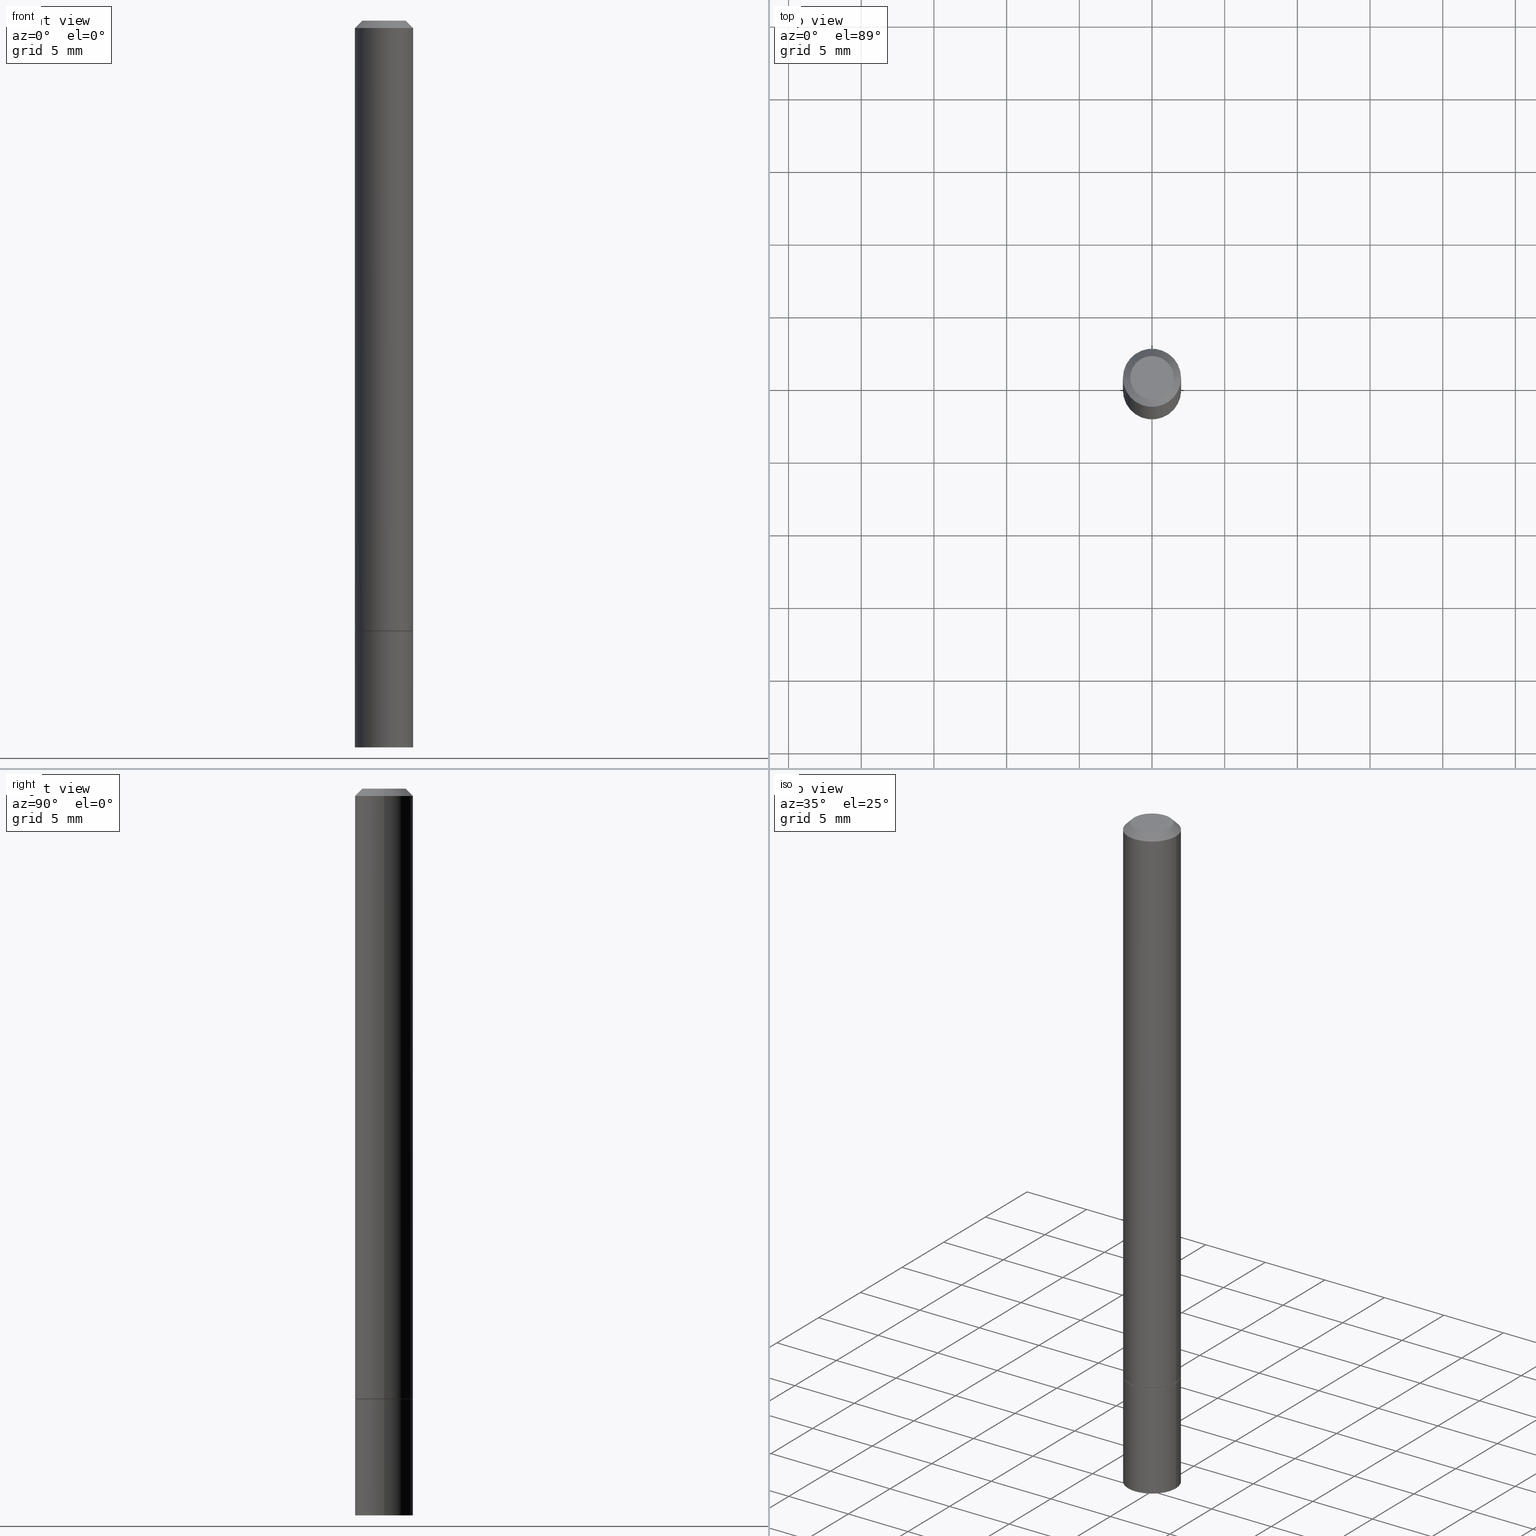
[diagram: canonical four-view strip — front | top / right | iso, engineering-drawing reading convention]
A machine part, canonical four-view strip (front | top / right | iso — engineering-drawing reading convention). The complete STEP part file that produces these views, byte-faithful:
ISO-10303-21;
HEADER;
FILE_DESCRIPTION (( 'STEP AP203' ),
    '1' );
FILE_NAME ('49268.STEP',
    '2024-02-28T17:05:55',
    ( '' ),
    ( '' ),
    'SwSTEP 2.0',
    'SolidWorks 2023',
    '' );
FILE_SCHEMA (( 'CONFIG_CONTROL_DESIGN' ));
ENDSEC;

DATA;
#1 = ORIENTED_EDGE ( 'NONE', *, *, #291, .T. ) ;
#2 = ORIENTED_EDGE ( 'NONE', *, *, #113, .F. ) ;
#3 = COORDINATED_UNIVERSAL_TIME_OFFSET ( 5, 0, .BEHIND. ) ;
#4 = PERSON_AND_ORGANIZATION_ROLE ( 'classification_officer' ) ;
#5 = PRODUCT ( '49268', '49268', '', ( #244 ) ) ;
#6 = DIRECTION ( 'NONE',  ( 1.000000000000000000, -6.982962677686266711E-15, 4.876176775795935793E-29 ) ) ;
#7 = UNCERTAINTY_MEASURE_WITH_UNIT (LENGTH_MEASURE( 1.000000000000000082E-05 ), #42, 'distance_accuracy_value', 'NONE');
#8 = VERTEX_POINT ( 'NONE', #246 ) ;
#9 = COORDINATED_UNIVERSAL_TIME_OFFSET ( 5, 0, .BEHIND. ) ;
#10 = DIRECTION ( 'NONE',  ( -2.445468806185136877E-29, 3.491481338843145188E-15, 1.000000000000000000 ) ) ;
#11 = FACE_OUTER_BOUND ( 'NONE', #175, .T. ) ;
#12 = ADVANCED_FACE ( 'NONE', ( #352 ), #354, .F. ) ;
#13 = EDGE_LOOP ( 'NONE', ( #41, #205, #241, #60 ) ) ;
#14 = CARTESIAN_POINT ( 'NONE',  ( 0.000000000000000000, 0.000000000000000000, 0.000000000000000000 ) ) ;
#15 = CIRCLE ( 'NONE', #145, 0.07875000000000000056 ) ;
#16 = EDGE_LOOP ( 'NONE', ( #261, #186, #256, #289 ) ) ;
#17 = CARTESIAN_POINT ( 'NONE',  ( 4.890937612370276662E-31, -6.982962677686296539E-17, -0.02000000000000001776 ) ) ;
#18 = DIRECTION ( 'NONE',  ( -2.445468806185136597E-29, 3.491481338843145583E-15, 1.000000000000000000 ) ) ;
#19 = EDGE_CURVE ( 'NONE', #267, #217, #162, .T. ) ;
#20 = CIRCLE ( 'NONE', #346, 0.05874999999999985095 ) ;
#21 = DIRECTION ( 'NONE',  ( -2.445468806185136597E-29, 3.491481338843145583E-15, 1.000000000000000000 ) ) ;
#22 = MANIFOLD_SOLID_BREP ( 'Body-Move/Copy2[2]', #313 ) ;
#23 = DIRECTION ( 'NONE',  ( -1.000000000000000000, 6.982962677686265922E-15, -4.876176775795935793E-29 ) ) ;
#24 = COORDINATED_UNIVERSAL_TIME_OFFSET ( 5, 0, .BEHIND. ) ;
#25 = PRODUCT_RELATED_PRODUCT_CATEGORY ( 'detail', '', ( #5 ) ) ;
#26 = DIRECTION ( 'NONE',  ( -2.445468806185136597E-29, 3.491481338843145583E-15, 1.000000000000000000 ) ) ;
#27 = DIRECTION ( 'NONE',  ( -2.445468806185136877E-29, 3.491481338843145188E-15, 1.000000000000000000 ) ) ;
#28 = CARTESIAN_POINT ( 'NONE',  ( 4.043582671027122641E-29, -5.773164393777140283E-15, -1.653499999999999748 ) ) ;
#29 = CIRCLE ( 'NONE', #318, 0.07875000000000000056 ) ;
#30 = VECTOR ( 'NONE', #224, 39.37007874015748143 ) ;
#31 = CARTESIAN_POINT ( 'NONE',  ( 0.07875000000000000056, -7.422889326380525053E-15, -1.968500000000000139 ) ) ;
#32 = ADVANCED_BREP_SHAPE_REPRESENTATION ( '49268', ( #268, #22, #247 ), #190 ) ;
#33 = ADVANCED_FACE ( 'NONE', ( #276 ), #232, .T. ) ;
#34 = ORIENTED_EDGE ( 'NONE', *, *, #59, .T. ) ;
#35 = VECTOR ( 'NONE', #284, 39.37007874015748143 ) ;
#36 = CIRCLE ( 'NONE', #81, 0.05874999999999985095 ) ;
#37 = EDGE_LOOP ( 'NONE', ( #150, #130, #1, #43 ) ) ;
#38 = EDGE_CURVE ( 'NONE', #267, #147, #29, .T. ) ;
#39 = DIRECTION ( 'NONE',  ( 1.000000000000000000, -6.982962677686266711E-15, 4.876176775795935793E-29 ) ) ;
#40 = ADVANCED_FACE ( 'NONE', ( #64 ), #287, .T. ) ;
#41 = ORIENTED_EDGE ( 'NONE', *, *, #328, .F. ) ;
#42 =( CONVERSION_BASED_UNIT ( 'INCH', #90 ) LENGTH_UNIT ( ) NAMED_UNIT ( #164 ) );
#43 = ORIENTED_EDGE ( 'NONE', *, *, #59, .F. ) ;
#44 = COORDINATED_UNIVERSAL_TIME_OFFSET ( 5, 0, .BEHIND. ) ;
#45 = ORIENTED_EDGE ( 'NONE', *, *, #85, .T. ) ;
#46 = DIRECTION ( 'NONE',  ( 1.000000000000000000, -6.982962677686264344E-15, 0.000000000000000000 ) ) ;
#47 = VECTOR ( 'NONE', #61, 39.37007874015748143 ) ;
#48 = ORIENTED_EDGE ( 'NONE', *, *, #328, .T. ) ;
#49 = LINE ( 'NONE', #106, #238 ) ;
#50 = DIRECTION ( 'NONE',  ( 2.438088387897960049E-29, -3.491481338843145188E-15, -1.000000000000000000 ) ) ;
#51 = CC_DESIGN_APPROVAL ( #348, ( #227 ) ) ;
#52 = ADVANCED_FACE ( 'NONE', ( #277 ), #235, .F. ) ;
#53 = LINE ( 'NONE', #221, #361 ) ;
#54 = APPROVAL_STATUS ( 'not_yet_approved' ) ;
#55 = CARTESIAN_POINT ( 'NONE',  ( 0.07874999999999997280, -6.319581223306091410E-15, -1.652499999999999858 ) ) ;
#56 = CARTESIAN_POINT ( 'NONE',  ( -0.07874999999999988953, 5.595524044110781115E-16, -3.873661383575732887E-30 ) ) ;
#57 = CIRCLE ( 'NONE', #89, 0.07774999999999999967 ) ;
#58 = CC_DESIGN_PERSON_AND_ORGANIZATION_ASSIGNMENT ( #206, #317, ( #273 ) ) ;
#59 = EDGE_CURVE ( 'NONE', #160, #8, #263, .T. ) ;
#60 = ORIENTED_EDGE ( 'NONE', *, *, #360, .F. ) ;
#61 = DIRECTION ( 'NONE',  ( -0.7071067811865464625, 2.468850131082245622E-15, -0.7071067811865485719 ) ) ;
#62 = PERSON_AND_ORGANIZATION ( #229, #116 ) ;
#63 = PERSON_AND_ORGANIZATION_ROLE ( 'design_owner' ) ;
#64 = FACE_OUTER_BOUND ( 'NONE', #16, .T. ) ;
#65 = AXIS2_PLACEMENT_3D ( 'NONE', #255, #288, #173 ) ;
#66 = PRODUCT_DEFINITION_SHAPE ( 'NONE', 'NONE',  #227 ) ;
#67 = SECURITY_CLASSIFICATION ( '', '', #233 ) ;
#68 = CYLINDRICAL_SURFACE ( 'NONE', #211, 0.07874999999999988953 ) ;
#69 = VERTEX_POINT ( 'NONE', #55 ) ;
#70 = APPLICATION_PROTOCOL_DEFINITION ( 'international standard', 'config_control_design', 1994, #243 ) ;
#71 = ORIENTED_EDGE ( 'NONE', *, *, #110, .T. ) ;
#72 = VERTEX_POINT ( 'NONE', #252 ) ;
#73 = CARTESIAN_POINT ( 'NONE',  ( 4.043582671027122641E-29, -5.773164393777140283E-15, -1.653499999999999748 ) ) ;
#74 = CIRCLE ( 'NONE', #265, 0.07874999999999997280 ) ;
#75 = DIRECTION ( 'NONE',  ( -1.000000000000000000, 6.982962677686266711E-15, 0.000000000000000000 ) ) ;
#76 = PERSON_AND_ORGANIZATION ( #229, #116 ) ;
#77 = CARTESIAN_POINT ( 'NONE',  ( -0.07874999999999980627, 4.800786840909291600E-16, -0.02000000000000001776 ) ) ;
#78 = CARTESIAN_POINT ( 'NONE',  ( 4.813905344975441835E-29, -6.872981015512731707E-15, -1.968500000000000139 ) ) ;
#79 = ADVANCED_FACE ( 'NONE', ( #251 ), #358, .T. ) ;
#80 = DIRECTION ( 'NONE',  ( 1.000000000000000000, -6.982962677686265922E-15, 4.876176775795935232E-29 ) ) ;
#81 = AXIS2_PLACEMENT_3D ( 'NONE', #126, #274, #120 ) ;
#82 = FACE_OUTER_BOUND ( 'NONE', #214, .T. ) ;
#83 = DIRECTION ( 'NONE',  ( -2.445468806185136597E-29, 3.491481338843145583E-15, 1.000000000000000000 ) ) ;
#84 = APPROVAL_STATUS ( 'not_yet_approved' ) ;
#85 = EDGE_CURVE ( 'NONE', #320, #188, #20, .T. ) ;
#86 = LOCAL_TIME ( 12, 5, 55.00000000000000000, #3 ) ;
#87 = CC_DESIGN_PERSON_AND_ORGANIZATION_ASSIGNMENT ( #95, #262, ( #273 ) ) ;
#88 = ORIENTED_EDGE ( 'NONE', *, *, #144, .T. ) ;
#89 = AXIS2_PLACEMENT_3D ( 'NONE', #197, #249, #139 ) ;
#90 = LENGTH_MEASURE_WITH_UNIT ( LENGTH_MEASURE( 0.02539999999999999897 ), #236 );
#91 = DATE_AND_TIME ( #99, #86 ) ;
#92 = DATE_AND_TIME ( #97, #228 ) ;
#93 = EDGE_CURVE ( 'NONE', #8, #160, #226, .T. ) ;
#94 = ORIENTED_EDGE ( 'NONE', *, *, #203, .T. ) ;
#95 = PERSON_AND_ORGANIZATION ( #229, #116 ) ;
#96 = AXIS2_PLACEMENT_3D ( 'NONE', #309, #108, #219 ) ;
#97 = CALENDAR_DATE ( 2024, 28, 2 ) ;
#98 = CARTESIAN_POINT ( 'NONE',  ( 5.499083108678337748E-16, 0.07874999999999422740, -1.653500000000000192 ) ) ;
#99 = CALENDAR_DATE ( 2024, 28, 2 ) ;
#100 = EDGE_LOOP ( 'NONE', ( #212, #322, #180, #185 ) ) ;
#101 = DIRECTION ( 'NONE',  ( 1.000000000000000000, -6.982962677686264344E-15, 0.000000000000000000 ) ) ;
#102 = EDGE_LOOP ( 'NONE', ( #292, #156 ) ) ;
#103 = CIRCLE ( 'NONE', #183, 0.07875000000000000056 ) ;
#104 = CARTESIAN_POINT ( 'NONE',  ( 4.043582671027123201E-29, -5.773164393777141072E-15, -1.653499999999999970 ) ) ;
#105 = ADVANCED_FACE ( 'NONE', ( #82 ), #357, .T. ) ;
#106 = CARTESIAN_POINT ( 'NONE',  ( -0.07774999999999999967, -5.220717416723661700E-15, -1.653499999999999748 ) ) ;
#107 = CARTESIAN_POINT ( 'NONE',  ( 0.000000000000000000, 0.000000000000000000, 0.000000000000000000 ) ) ;
#108 = DIRECTION ( 'NONE',  ( 2.445468806185136597E-29, -3.491481338843145583E-15, -1.000000000000000000 ) ) ;
#109 = CARTESIAN_POINT ( 'NONE',  ( 0.07874999999999980627, -6.100938441013697087E-16, -0.02000000000000001776 ) ) ;
#110 = EDGE_CURVE ( 'NONE', #344, #217, #210, .T. ) ;
#111 = DATE_TIME_ROLE ( 'creation_date' ) ;
#112 = APPROVAL_PERSON_ORGANIZATION ( #76, #245, #280 ) ;
#113 = EDGE_CURVE ( 'NONE', #128, #69, #359, .T. ) ;
#114 = EDGE_LOOP ( 'NONE', ( #94, #153, #312, #340 ) ) ;
#115 = VERTEX_POINT ( 'NONE', #327 ) ;
#116 = ORGANIZATION ( 'UNSPECIFIED', 'UNSPECIFIED', '' ) ;
#117 = CARTESIAN_POINT ( 'NONE',  ( 0.000000000000000000, 0.000000000000000000, 0.000000000000000000 ) ) ;
#118 = APPROVAL_DATE_TIME ( #91, #159 ) ;
#119 = CC_DESIGN_DATE_AND_TIME_ASSIGNMENT ( #363, #111, ( #227 ) ) ;
#120 = DIRECTION ( 'NONE',  ( 1.000000000000000000, -6.982962677686266711E-15, 4.876176775795935793E-29 ) ) ;
#121 = DIRECTION ( 'NONE',  ( 1.000000000000000000, -6.982962677686261977E-15, 0.000000000000000000 ) ) ;
#122 = CARTESIAN_POINT ( 'NONE',  ( 4.043582671027123201E-29, -5.773164393777141072E-15, -1.653499999999999970 ) ) ;
#123 = CARTESIAN_POINT ( 'NONE',  ( -0.07875000000000000056, 5.595524044110789003E-16, -3.873661383575737792E-30 ) ) ;
#124 = AXIS2_PLACEMENT_3D ( 'NONE', #17, #129, #75 ) ;
#125 = APPROVAL_PERSON_ORGANIZATION ( #271, #348, #299 ) ;
#126 = CARTESIAN_POINT ( 'NONE',  ( 0.000000000000000000, 0.000000000000000000, 0.000000000000000000 ) ) ;
#127 = EDGE_CURVE ( 'NONE', #115, #72, #49, .T. ) ;
#128 = VERTEX_POINT ( 'NONE', #220 ) ;
#129 = DIRECTION ( 'NONE',  ( 2.445468806185136597E-29, -3.491481338843145583E-15, -1.000000000000000000 ) ) ;
#130 = ORIENTED_EDGE ( 'NONE', *, *, #334, .T. ) ;
#131 = AXIS2_PLACEMENT_3D ( 'NONE', #234, #240, #101 ) ;
#132 = DIRECTION ( 'NONE',  ( -0.7071067811866138531, 7.493145998870593974E-15, 0.7071067811864811814 ) ) ;
#133 = COORDINATED_UNIVERSAL_TIME_OFFSET ( 5, 0, .BEHIND. ) ;
#134 = PERSON_AND_ORGANIZATION_ROLE ( 'creator' ) ;
#135 = ADVANCED_FACE ( 'NONE', ( #193 ), #304, .F. ) ;
#136 = CARTESIAN_POINT ( 'NONE',  ( -0.07875000000000000056, -5.763520300233858771E-15, -1.653499999999999970 ) ) ;
#137 = APPROVAL_DATE_TIME ( #305, #245 ) ;
#138 = LINE ( 'NONE', #109, #30 ) ;
#139 = DIRECTION ( 'NONE',  ( 1.000000000000000000, -6.982962677686261977E-15, 0.000000000000000000 ) ) ;
#140 = DIRECTION ( 'NONE',  ( 1.000000000000000000, -6.982962677686261977E-15, 0.000000000000000000 ) ) ;
#141 = DIRECTION ( 'NONE',  ( 1.000000000000000000, -6.982962677686261977E-15, 0.000000000000000000 ) ) ;
#142 = APPROVAL_ROLE ( '' ) ;
#143 = SHAPE_DEFINITION_REPRESENTATION ( #66, #32 ) ;
#144 = EDGE_CURVE ( 'NONE', #72, #160, #192, .T. ) ;
#145 = AXIS2_PLACEMENT_3D ( 'NONE', #78, #278, #141 ) ;
#146 = ORIENTED_EDGE ( 'NONE', *, *, #356, .T. ) ;
#147 = VERTEX_POINT ( 'NONE', #31 ) ;
#148 = PERSON_AND_ORGANIZATION ( #229, #116 ) ;
#149 = DIRECTION ( 'NONE',  ( -2.445468806185136597E-29, 3.491481338843145583E-15, 1.000000000000000000 ) ) ;
#150 = ORIENTED_EDGE ( 'NONE', *, *, #144, .F. ) ;
#151 = AXIS2_PLACEMENT_3D ( 'NONE', #333, #223, #198 ) ;
#152 = PERSON_AND_ORGANIZATION ( #229, #116 ) ;
#153 = ORIENTED_EDGE ( 'NONE', *, *, #19, .T. ) ;
#154 = ORIENTED_EDGE ( 'NONE', *, *, #85, .F. ) ;
#155 = CARTESIAN_POINT ( 'NONE',  ( 4.041137202220937598E-29, -5.769672912438298064E-15, -1.652499999999999858 ) ) ;
#156 = ORIENTED_EDGE ( 'NONE', *, *, #295, .F. ) ;
#157 = CALENDAR_DATE ( 2024, 28, 2 ) ;
#158 = DIRECTION ( 'NONE',  ( 0.000000000000000000, 0.000000000000000000, 1.000000000000000000 ) ) ;
#159 = APPROVAL ( #84, 'UNSPECIFIED' ) ;
#160 = VERTEX_POINT ( 'NONE', #77 ) ;
#161 = VECTOR ( 'NONE', #248, 39.37007874015748143 ) ;
#162 = LINE ( 'NONE', #123, #301 ) ;
#163 = CARTESIAN_POINT ( 'NONE',  ( 4.890937612370276662E-31, -6.982962677686296539E-17, -0.02000000000000001776 ) ) ;
#164 = DIMENSIONAL_EXPONENTS ( 1.000000000000000000, 0.000000000000000000, 0.000000000000000000, 0.000000000000000000, 0.000000000000000000, 0.000000000000000000, 0.000000000000000000 ) ;
#165 = DIRECTION ( 'NONE',  ( -1.000000000000000000, 6.982962677686265922E-15, -4.876176775795935793E-29 ) ) ;
#166 = CLOSED_SHELL ( 'NONE', ( #79, #105, #52, #200 ) ) ;
#167 = VECTOR ( 'NONE', #27, 39.37007874015748143 ) ;
#168 = FACE_OUTER_BOUND ( 'NONE', #316, .T. ) ;
#169 = APPLICATION_CONTEXT ( 'configuration controlled 3d designs of mechanical parts and assemblies' ) ;
#170 = DIRECTION ( 'NONE',  ( -2.445468806185136877E-29, 3.491481338843145188E-15, 1.000000000000000000 ) ) ;
#171 = CC_DESIGN_PERSON_AND_ORGANIZATION_ASSIGNMENT ( #62, #4, ( #67 ) ) ;
#172 = CARTESIAN_POINT ( 'NONE',  ( 5.499083108678415648E-16, 0.07874999999999311717, -1.968500000000000361 ) ) ;
#173 = DIRECTION ( 'NONE',  ( 1.000000000000000000, -6.982962677686266711E-15, 0.000000000000000000 ) ) ;
#174 = CC_DESIGN_APPROVAL ( #245, ( #67 ) ) ;
#175 = EDGE_LOOP ( 'NONE', ( #298, #88, #290, #272 ) ) ;
#176 = ADVANCED_FACE ( 'NONE', ( #196 ), #239, .T. ) ;
#177 = LOCAL_TIME ( 12, 5, 55.00000000000000000, #133 ) ;
#178 = EDGE_LOOP ( 'NONE', ( #71, #146 ) ) ;
#179 = ORIENTED_EDGE ( 'NONE', *, *, #342, .F. ) ;
#180 = ORIENTED_EDGE ( 'NONE', *, *, #222, .T. ) ;
#181 = CARTESIAN_POINT ( 'NONE',  ( -0.05874999999999985095, 4.451638707024981026E-16, -2.990994270918719090E-30 ) ) ;
#182 = DIRECTION ( 'NONE',  ( -1.000000000000000000, 6.982962677686265922E-15, -4.876176775795935793E-29 ) ) ;
#183 = AXIS2_PLACEMENT_3D ( 'NONE', #122, #351, #296 ) ;
#184 = CARTESIAN_POINT ( 'NONE',  ( 0.07875000000000000056, -6.323072704644934417E-15, -1.653499999999999970 ) ) ;
#185 = ORIENTED_EDGE ( 'NONE', *, *, #356, .F. ) ;
#186 = ORIENTED_EDGE ( 'NONE', *, *, #295, .T. ) ;
#187 = LINE ( 'NONE', #343, #47 ) ;
#188 = VERTEX_POINT ( 'NONE', #195 ) ;
#189 = DATE_AND_TIME ( #157, #347 ) ;
#190 =( GEOMETRIC_REPRESENTATION_CONTEXT ( 3 ) GLOBAL_UNCERTAINTY_ASSIGNED_CONTEXT ( ( #7 ) ) GLOBAL_UNIT_ASSIGNED_CONTEXT ( ( #42, #323, #207 ) ) REPRESENTATION_CONTEXT ( 'NONE', 'WORKASPACE' ) );
#191 = CARTESIAN_POINT ( 'NONE',  ( 4.813905344975441835E-29, -6.872981015512731707E-15, -1.968500000000000139 ) ) ;
#192 = LINE ( 'NONE', #56, #161 ) ;
#193 = FACE_OUTER_BOUND ( 'NONE', #230, .T. ) ;
#194 = AXIS2_PLACEMENT_3D ( 'NONE', #104, #83, #330 ) ;
#195 = CARTESIAN_POINT ( 'NONE',  ( 0.05874999999999985095, -5.065740507352231227E-16, 3.205406768517976639E-30 ) ) ;
#196 = FACE_OUTER_BOUND ( 'NONE', #350, .T. ) ;
#197 = CARTESIAN_POINT ( 'NONE',  ( 4.043582671027122641E-29, -5.773164393777140283E-15, -1.653499999999999748 ) ) ;
#198 = DIRECTION ( 'NONE',  ( 1.000000000000000000, -6.982962677686265922E-15, 4.876176775795935232E-29 ) ) ;
#199 = LOCAL_TIME ( 12, 5, 55.00000000000000000, #24 ) ;
#200 = ADVANCED_FACE ( 'NONE', ( #254 ), #285, .T. ) ;
#201 = AXIS2_PLACEMENT_3D ( 'NONE', #303, #26, #80 ) ;
#202 = ORIENTED_EDGE ( 'NONE', *, *, #203, .F. ) ;
#203 = EDGE_CURVE ( 'NONE', #147, #267, #15, .T. ) ;
#204 = APPLICATION_PROTOCOL_DEFINITION ( 'international standard', 'config_control_design', 1994, #169 ) ;
#205 = ORIENTED_EDGE ( 'NONE', *, *, #250, .T. ) ;
#206 = PERSON_AND_ORGANIZATION ( #229, #116 ) ;
#207 =( NAMED_UNIT ( * ) SI_UNIT ( $, .STERADIAN. ) SOLID_ANGLE_UNIT ( ) );
#208 = ADVANCED_FACE ( 'NONE', ( #168 ), #341, .T. ) ;
#209 = DIRECTION ( 'NONE',  ( 1.000000000000000000, -6.982962677686265922E-15, 4.876176775795935793E-29 ) ) ;
#210 = CIRCLE ( 'NONE', #194, 0.07875000000000000056 ) ;
#211 = AXIS2_PLACEMENT_3D ( 'NONE', #117, #266, #39 ) ;
#212 = ORIENTED_EDGE ( 'NONE', *, *, #19, .F. ) ;
#213 = APPROVAL_DATE_TIME ( #92, #348 ) ;
#214 = EDGE_LOOP ( 'NONE', ( #202, #314 ) ) ;
#215 = DIRECTION ( 'NONE',  ( -2.445468806185136597E-29, 3.491481338843145583E-15, 1.000000000000000000 ) ) ;
#216 = ORIENTED_EDGE ( 'NONE', *, *, #127, .T. ) ;
#217 = VERTEX_POINT ( 'NONE', #136 ) ;
#218 = AXIS2_PLACEMENT_3D ( 'NONE', #14, #215, #6 ) ;
#219 = DIRECTION ( 'NONE',  ( -1.000000000000000000, 6.982962677686266711E-15, 0.000000000000000000 ) ) ;
#220 = CARTESIAN_POINT ( 'NONE',  ( 0.07774999999999999967, -6.316089741967246825E-15, -1.653499999999999748 ) ) ;
#221 = CARTESIAN_POINT ( 'NONE',  ( 0.07875000000000000056, -5.499083108677934443E-16, 3.839989210939299016E-30 ) ) ;
#222 = EDGE_CURVE ( 'NONE', #147, #344, #53, .T. ) ;
#223 = DIRECTION ( 'NONE',  ( -2.445468806185136597E-29, 3.491481338843145583E-15, 1.000000000000000000 ) ) ;
#224 = DIRECTION ( 'NONE',  ( 0.7071067811865464625, -7.319954787623252890E-15, -0.7071067811865485719 ) ) ;
#225 = LINE ( 'NONE', #308, #167 ) ;
#226 = CIRCLE ( 'NONE', #65, 0.07874999999999980627 ) ;
#227 = PRODUCT_DEFINITION ( 'UNKNOWN', '', #273, #311 ) ;
#228 = LOCAL_TIME ( 12, 5, 55.00000000000000000, #9 ) ;
#229 = PERSON ( 'UNSPECIFIED', 'UNSPECIFIED', 'UNSPECIFIED', ('UNSPECIFIED'), ('UNSPECIFIED'), ('UNSPECIFIED') ) ;
#230 = EDGE_LOOP ( 'NONE', ( #45, #48 ) ) ;
#231 = CC_DESIGN_PERSON_AND_ORGANIZATION_ASSIGNMENT ( #148, #63, ( #5 ) ) ;
#232 = CONICAL_SURFACE ( 'NONE', #124, 0.07874999999999980627, 0.7853981633974468357 ) ;
#233 = SECURITY_CLASSIFICATION_LEVEL ( 'unclassified' ) ;
#234 = CARTESIAN_POINT ( 'NONE',  ( 4.041137202220937598E-29, -5.769672912438298064E-15, -1.652499999999999858 ) ) ;
#235 = PLANE ( 'NONE',  #336 ) ;
#236 =( LENGTH_UNIT ( ) NAMED_UNIT ( * ) SI_UNIT ( $, .METRE. ) );
#237 = DIRECTION ( 'NONE',  ( 1.000000000000000000, -6.982962677686261977E-15, 0.000000000000000000 ) ) ;
#238 = VECTOR ( 'NONE', #132, 39.37007874015748143 ) ;
#239 = CONICAL_SURFACE ( 'NONE', #96, 0.07874999999999980627, 0.7853981633974468357 ) ;
#240 = DIRECTION ( 'NONE',  ( -2.445468806185136597E-29, 3.491481338843145583E-15, 1.000000000000000000 ) ) ;
#241 = ORIENTED_EDGE ( 'NONE', *, *, #93, .T. ) ;
#242 = CALENDAR_DATE ( 2024, 28, 2 ) ;
#243 = APPLICATION_CONTEXT ( 'configuration controlled 3d designs of mechanical parts and assemblies' ) ;
#244 = MECHANICAL_CONTEXT ( 'NONE', #169, 'mechanical' ) ;
#245 = APPROVAL ( #54, 'UNSPECIFIED' ) ;
#246 = CARTESIAN_POINT ( 'NONE',  ( 0.07874999999999980627, -6.100938441013697087E-16, -0.02000000000000001776 ) ) ;
#247 = AXIS2_PLACEMENT_3D ( 'NONE', #345, #158, #321 ) ;
#248 = DIRECTION ( 'NONE',  ( -2.445468806185136877E-29, 3.491481338843145188E-15, 1.000000000000000000 ) ) ;
#249 = DIRECTION ( 'NONE',  ( -2.445468806185136597E-29, 3.491481338843145583E-15, 1.000000000000000000 ) ) ;
#250 = EDGE_CURVE ( 'NONE', #188, #8, #138, .T. ) ;
#251 = FACE_OUTER_BOUND ( 'NONE', #114, .T. ) ;
#252 = CARTESIAN_POINT ( 'NONE',  ( -0.07874999999999997280, -2.360198865196498330E-15, -1.652499999999999858 ) ) ;
#253 = FACE_OUTER_BOUND ( 'NONE', #37, .T. ) ;
#254 = FACE_OUTER_BOUND ( 'NONE', #100, .T. ) ;
#255 = CARTESIAN_POINT ( 'NONE',  ( 4.890937612370276662E-31, -6.982962677686296539E-17, -0.02000000000000001776 ) ) ;
#256 = ORIENTED_EDGE ( 'NONE', *, *, #113, .T. ) ;
#257 = PERSON_AND_ORGANIZATION ( #229, #116 ) ;
#258 = ORIENTED_EDGE ( 'NONE', *, *, #282, .T. ) ;
#259 = CYLINDRICAL_SURFACE ( 'NONE', #218, 0.07874999999999988953 ) ;
#260 = CARTESIAN_POINT ( 'NONE',  ( -0.07875000000000000056, -5.763520300233858771E-15, -1.968500000000000139 ) ) ;
#261 = ORIENTED_EDGE ( 'NONE', *, *, #127, .F. ) ;
#262 = PERSON_AND_ORGANIZATION_ROLE ( 'design_supplier' ) ;
#263 = CIRCLE ( 'NONE', #325, 0.07874999999999980627 ) ;
#264 = AXIS2_PLACEMENT_3D ( 'NONE', #73, #353, #209 ) ;
#265 = AXIS2_PLACEMENT_3D ( 'NONE', #155, #315, #46 ) ;
#266 = DIRECTION ( 'NONE',  ( -2.445468806185136597E-29, 3.491481338843145583E-15, 1.000000000000000000 ) ) ;
#267 = VERTEX_POINT ( 'NONE', #260 ) ;
#268 = MANIFOLD_SOLID_BREP ( 'Body-Move/Copy2[1]', #166 ) ;
#269 = CC_DESIGN_PERSON_AND_ORGANIZATION_ASSIGNMENT ( #152, #134, ( #227 ) ) ;
#270 = CARTESIAN_POINT ( 'NONE',  ( 4.043582671027122641E-29, -5.773164393777140283E-15, -1.653499999999999748 ) ) ;
#271 = PERSON_AND_ORGANIZATION ( #229, #116 ) ;
#272 = ORIENTED_EDGE ( 'NONE', *, *, #291, .F. ) ;
#273 = PRODUCT_DEFINITION_FORMATION_WITH_SPECIFIED_SOURCE ( 'ANY', '', #5, .NOT_KNOWN. ) ;
#274 = DIRECTION ( 'NONE',  ( -2.445468806185136597E-29, 3.491481338843145583E-15, 1.000000000000000000 ) ) ;
#275 = CC_DESIGN_DATE_AND_TIME_ASSIGNMENT ( #189, #355, ( #67 ) ) ;
#276 = FACE_OUTER_BOUND ( 'NONE', #13, .T. ) ;
#277 = FACE_OUTER_BOUND ( 'NONE', #178, .T. ) ;
#278 = DIRECTION ( 'NONE',  ( -2.445468806185136597E-29, 3.491481338843145583E-15, 1.000000000000000000 ) ) ;
#279 = AXIS2_PLACEMENT_3D ( 'NONE', #270, #349, #237 ) ;
#280 = APPROVAL_ROLE ( '' ) ;
#281 = CIRCLE ( 'NONE', #366, 0.07774999999999999967 ) ;
#282 = EDGE_CURVE ( 'NONE', #128, #115, #281, .T. ) ;
#283 = DIRECTION ( 'NONE',  ( 1.000000000000000000, -6.982962677686266711E-15, 0.000000000000000000 ) ) ;
#284 = DIRECTION ( 'NONE',  ( 0.7071067811866138531, -2.468850131082952047E-15, 0.7071067811864811814 ) ) ;
#285 = CYLINDRICAL_SURFACE ( 'NONE', #201, 0.07875000000000000056 ) ;
#286 = CALENDAR_DATE ( 2024, 28, 2 ) ;
#287 = CONICAL_SURFACE ( 'NONE', #279, 0.07774999999999999967, 0.7853981633975420928 ) ;
#288 = DIRECTION ( 'NONE',  ( -2.445468806185136597E-29, 3.491481338843145583E-15, 1.000000000000000000 ) ) ;
#289 = ORIENTED_EDGE ( 'NONE', *, *, #334, .F. ) ;
#290 = ORIENTED_EDGE ( 'NONE', *, *, #93, .F. ) ;
#291 = EDGE_CURVE ( 'NONE', #69, #8, #225, .T. ) ;
#292 = ORIENTED_EDGE ( 'NONE', *, *, #282, .F. ) ;
#293 = APPROVAL_STATUS ( 'not_yet_approved' ) ;
#294 = CIRCLE ( 'NONE', #131, 0.07874999999999997280 ) ;
#295 = EDGE_CURVE ( 'NONE', #115, #128, #57, .T. ) ;
#296 = DIRECTION ( 'NONE',  ( 1.000000000000000000, -6.982962677686261977E-15, 0.000000000000000000 ) ) ;
#297 = DIRECTION ( 'NONE',  ( -2.445468806185136597E-29, 3.491481338843145583E-15, 1.000000000000000000 ) ) ;
#298 = ORIENTED_EDGE ( 'NONE', *, *, #342, .T. ) ;
#299 = APPROVAL_ROLE ( '' ) ;
#300 = ADVANCED_FACE ( 'NONE', ( #253 ), #259, .T. ) ;
#301 = VECTOR ( 'NONE', #10, 39.37007874015748143 ) ;
#302 = DIRECTION ( 'NONE',  ( 2.438088387897960049E-29, -3.491481338843145188E-15, -1.000000000000000000 ) ) ;
#303 = CARTESIAN_POINT ( 'NONE',  ( 0.000000000000000000, 0.000000000000000000, 0.000000000000000000 ) ) ;
#304 = PLANE ( 'NONE',  #331 ) ;
#305 = DATE_AND_TIME ( #242, #177 ) ;
#306 = APPROVAL_PERSON_ORGANIZATION ( #257, #159, #142 ) ;
#307 = DIRECTION ( 'NONE',  ( -2.445468806185136597E-29, 3.491481338843145583E-15, 1.000000000000000000 ) ) ;
#308 = CARTESIAN_POINT ( 'NONE',  ( 0.07874999999999988953, -5.499083108677927540E-16, 3.839989210939294112E-30 ) ) ;
#309 = CARTESIAN_POINT ( 'NONE',  ( 4.890937612370276662E-31, -6.982962677686296539E-17, -0.02000000000000001776 ) ) ;
#310 = DIRECTION ( 'NONE',  ( 1.000000000000000000, -6.982962677686266711E-15, 4.876176775795935793E-29 ) ) ;
#311 = DESIGN_CONTEXT ( 'detailed design', #243, 'design' ) ;
#312 = ORIENTED_EDGE ( 'NONE', *, *, #110, .F. ) ;
#313 = CLOSED_SHELL ( 'NONE', ( #208, #337, #33, #176, #300, #40, #12, #135 ) ) ;
#314 = ORIENTED_EDGE ( 'NONE', *, *, #38, .F. ) ;
#315 = DIRECTION ( 'NONE',  ( -2.445468806185136597E-29, 3.491481338843145583E-15, 1.000000000000000000 ) ) ;
#316 = EDGE_LOOP ( 'NONE', ( #258, #216, #179, #2 ) ) ;
#317 = PERSON_AND_ORGANIZATION_ROLE ( 'creator' ) ;
#318 = AXIS2_PLACEMENT_3D ( 'NONE', #191, #297, #121 ) ;
#319 = CC_DESIGN_SECURITY_CLASSIFICATION ( #67, ( #273 ) ) ;
#320 = VERTEX_POINT ( 'NONE', #181 ) ;
#321 = DIRECTION ( 'NONE',  ( 1.000000000000000000, 0.000000000000000000, 0.000000000000000000 ) ) ;
#322 = ORIENTED_EDGE ( 'NONE', *, *, #38, .T. ) ;
#323 =( NAMED_UNIT ( * ) PLANE_ANGLE_UNIT ( ) SI_UNIT ( $, .RADIAN. ) );
#324 = ORIENTED_EDGE ( 'NONE', *, *, #360, .T. ) ;
#325 = AXIS2_PLACEMENT_3D ( 'NONE', #163, #18, #283 ) ;
#326 = CC_DESIGN_APPROVAL ( #159, ( #273 ) ) ;
#327 = CARTESIAN_POINT ( 'NONE',  ( -0.07774999999999999967, -5.215418962375440876E-15, -1.653499999999999748 ) ) ;
#328 = EDGE_CURVE ( 'NONE', #188, #320, #36, .T. ) ;
#329 = CARTESIAN_POINT ( 'NONE',  ( 4.102490573140670944E-16, 0.05874999999999985095, -2.051245286570342868E-16 ) ) ;
#330 = DIRECTION ( 'NONE',  ( 1.000000000000000000, -6.982962677686261977E-15, 0.000000000000000000 ) ) ;
#331 = AXIS2_PLACEMENT_3D ( 'NONE', #329, #50, #23 ) ;
#332 = AXIS2_PLACEMENT_3D ( 'NONE', #28, #307, #140 ) ;
#333 = CARTESIAN_POINT ( 'NONE',  ( 0.000000000000000000, 0.000000000000000000, 0.000000000000000000 ) ) ;
#334 = EDGE_CURVE ( 'NONE', #72, #69, #74, .T. ) ;
#335 = CARTESIAN_POINT ( 'NONE',  ( 0.07774999999999999967, -6.316089741967246825E-15, -1.653499999999999748 ) ) ;
#336 = AXIS2_PLACEMENT_3D ( 'NONE', #98, #302, #182 ) ;
#337 = ADVANCED_FACE ( 'NONE', ( #11 ), #68, .T. ) ;
#338 = CARTESIAN_POINT ( 'NONE',  ( 4.043582671027122641E-29, -5.773164393777140283E-15, -1.653499999999999748 ) ) ;
#339 = ORIENTED_EDGE ( 'NONE', *, *, #250, .F. ) ;
#340 = ORIENTED_EDGE ( 'NONE', *, *, #222, .F. ) ;
#341 = CONICAL_SURFACE ( 'NONE', #332, 0.07774999999999999967, 0.7853981633975420928 ) ;
#342 = EDGE_CURVE ( 'NONE', #69, #72, #294, .T. ) ;
#343 = CARTESIAN_POINT ( 'NONE',  ( -0.07874999999999980627, 4.800786840909291600E-16, -0.02000000000000001776 ) ) ;
#344 = VERTEX_POINT ( 'NONE', #184 ) ;
#345 = CARTESIAN_POINT ( 'NONE',  ( 0.000000000000000000, 0.000000000000000000, 0.000000000000000000 ) ) ;
#346 = AXIS2_PLACEMENT_3D ( 'NONE', #107, #21, #310 ) ;
#347 = LOCAL_TIME ( 12, 5, 55.00000000000000000, #44 ) ;
#348 = APPROVAL ( #293, 'UNSPECIFIED' ) ;
#349 = DIRECTION ( 'NONE',  ( -2.445468806185136597E-29, 3.491481338843145583E-15, 1.000000000000000000 ) ) ;
#350 = EDGE_LOOP ( 'NONE', ( #339, #154, #324, #34 ) ) ;
#351 = DIRECTION ( 'NONE',  ( -2.445468806185136597E-29, 3.491481338843145583E-15, 1.000000000000000000 ) ) ;
#352 = FACE_OUTER_BOUND ( 'NONE', #102, .T. ) ;
#353 = DIRECTION ( 'NONE',  ( -2.438088387897960049E-29, 3.491481338843145188E-15, 1.000000000000000000 ) ) ;
#354 = PLANE ( 'NONE',  #264 ) ;
#355 = DATE_TIME_ROLE ( 'classification_date' ) ;
#356 = EDGE_CURVE ( 'NONE', #217, #344, #103, .T. ) ;
#357 = PLANE ( 'NONE',  #365 ) ;
#358 = CYLINDRICAL_SURFACE ( 'NONE', #151, 0.07875000000000000056 ) ;
#359 = LINE ( 'NONE', #335, #35 ) ;
#360 = EDGE_CURVE ( 'NONE', #320, #160, #187, .T. ) ;
#361 = VECTOR ( 'NONE', #170, 39.37007874015748143 ) ;
#362 = DIRECTION ( 'NONE',  ( 2.438088387897960049E-29, -3.491481338843145188E-15, -1.000000000000000000 ) ) ;
#363 = DATE_AND_TIME ( #286, #199 ) ;
#364 = DIRECTION ( 'NONE',  ( 1.000000000000000000, -6.982962677686261977E-15, 0.000000000000000000 ) ) ;
#365 = AXIS2_PLACEMENT_3D ( 'NONE', #172, #362, #165 ) ;
#366 = AXIS2_PLACEMENT_3D ( 'NONE', #338, #149, #364 ) ;
ENDSEC;
END-ISO-10303-21;
